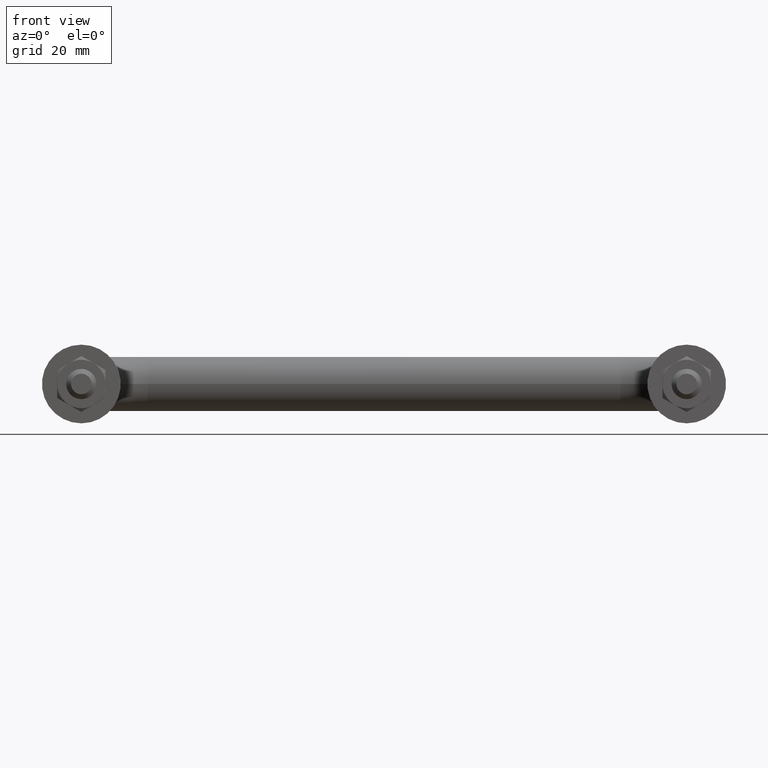
[diagram: clean part render]
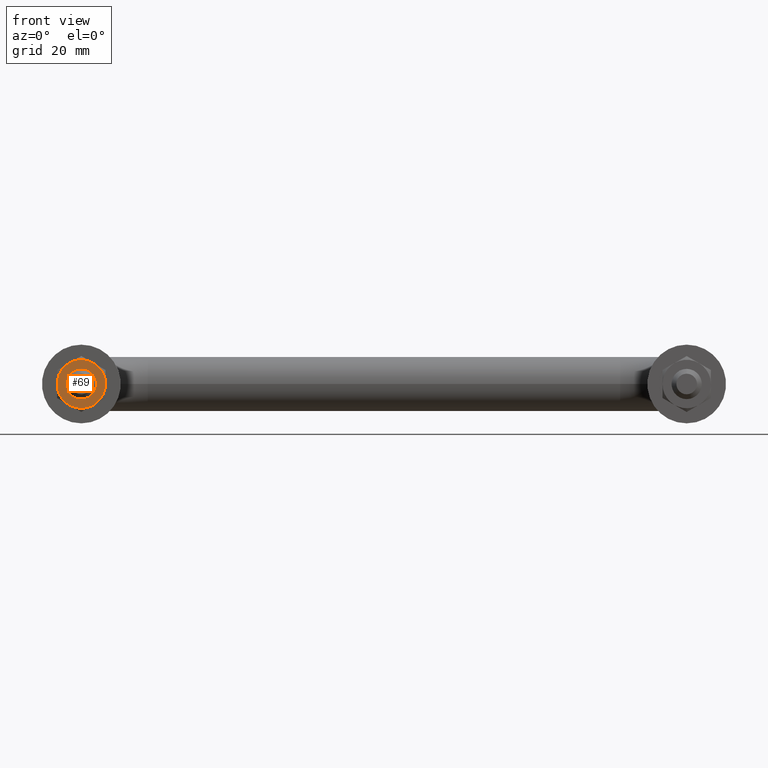
[diagram: same view with one face highlighted and labeled with its STEP entity id]
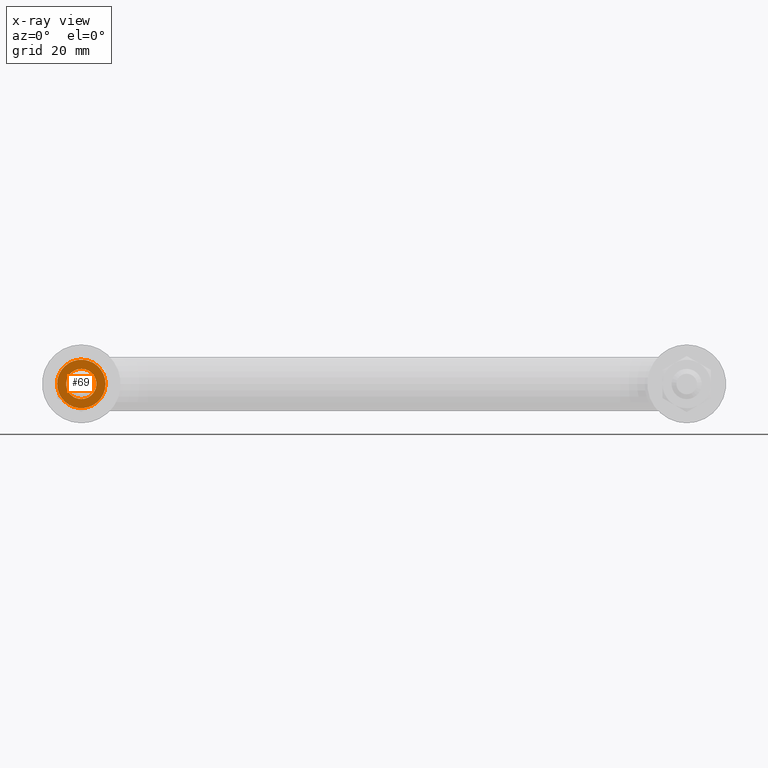
[diagram: x-ray of the same camera — body ghosted, the highlighted face saturated]
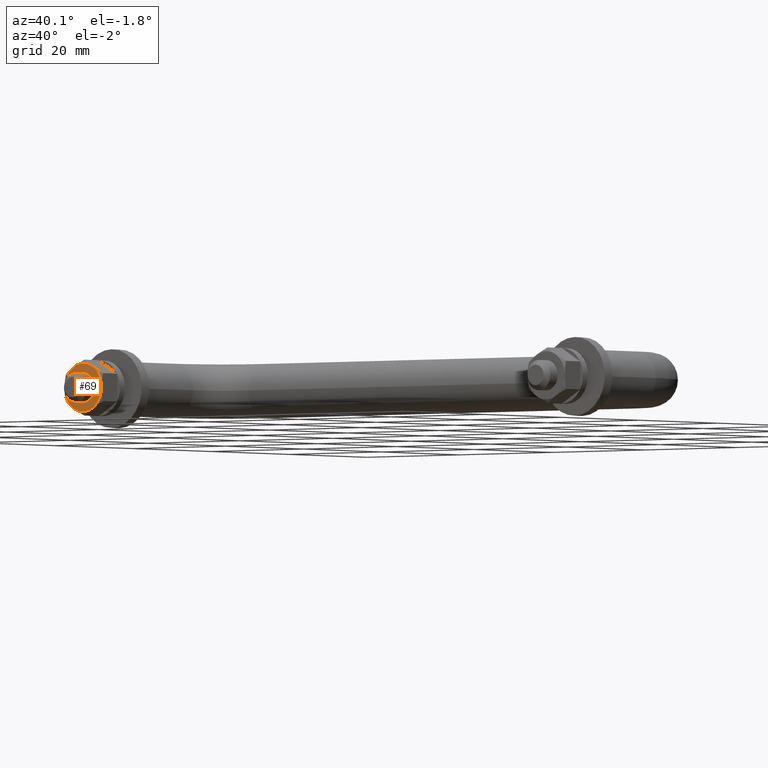
[diagram: same view with one face highlighted and labeled with its STEP entity id]
A machine part, front view. The second image highlights one B-rep face of the part: STEP entity #69.
The next image is the same camera in x-ray: the body ghosted, the highlighted face saturated — about 0% of this face is hidden behind the body in this view.
A second angle (auxiliary view) of the same face is appended — the face is thin or edge-on in the first view.
In plain terms, the highlighted planar face has unit normal (0, -1, -0).
Its self-contained STEP definition (entity closure, byte-faithful):
#36 = ORIENTED_EDGE ( 'NONE', *, *, #1285, .F. ) ;
#53 = VERTEX_POINT ( 'NONE', #509 ) ;
#68 = VERTEX_POINT ( 'NONE', #969 ) ;
#69 = ADVANCED_FACE ( 'NONE', ( #1494, #1180 ), #699, .T. ) ;
#103 = DIRECTION ( 'NONE',  ( -0.0000000000000000000, -1.000000000000000000, -0.0000000000000000000 ) ) ;
#105 = CARTESIAN_POINT ( 'NONE',  ( 0.0000000000000000000, 8.300000000000000700, -1.959370166115805200E-015 ) ) ;
#127 = DIRECTION ( 'NONE',  ( 0.0000000000000000000, 0.0000000000000000000, 1.000000000000000000 ) ) ;
#128 = DIRECTION ( 'NONE',  ( 0.0000000000000000000, 0.0000000000000000000, -1.000000000000000000 ) ) ;
#137 = CIRCLE ( 'NONE', #1532, 4.000000000000000000 ) ;
#173 = DIRECTION ( 'NONE',  ( -0.0000000000000000000, -1.000000000000000000, -0.0000000000000000000 ) ) ;
#215 = DIRECTION ( 'NONE',  ( -0.0000000000000000000, 1.000000000000000000, 0.0000000000000000000 ) ) ;
#222 = CIRCLE ( 'NONE', #784, 4.000000000000000000 ) ;
#227 = EDGE_CURVE ( 'NONE', #329, #53, #222, .T. ) ;
#230 = DIRECTION ( 'NONE',  ( 0.0000000000000000000, 0.0000000000000000000, 1.000000000000000000 ) ) ;
#264 = CARTESIAN_POINT ( 'NONE',  ( 0.0000000000000000000, 8.300000000000000700, 0.0000000000000000000 ) ) ;
#290 = ORIENTED_EDGE ( 'NONE', *, *, #322, .F. ) ;
#301 = ORIENTED_EDGE ( 'NONE', *, *, #227, .F. ) ;
#307 = DIRECTION ( 'NONE',  ( 1.000000000000000000, 0.0000000000000000000, 0.0000000000000000000 ) ) ;
#322 = EDGE_CURVE ( 'NONE', #1205, #1138, #137, .T. ) ;
#326 = CARTESIAN_POINT ( 'NONE',  ( 0.0000000000000000000, 8.300000000000000700, -1.959370166115805200E-015 ) ) ;
#329 = VERTEX_POINT ( 'NONE', #1206 ) ;
#339 = CARTESIAN_POINT ( 'NONE',  ( 4.000000000000000000, 8.300000000000000700, -1.959370166115805200E-015 ) ) ;
#350 = CIRCLE ( 'NONE', #1340, 4.000000000000000000 ) ;
#372 = DIRECTION ( 'NONE',  ( -0.0000000000000000000, -1.000000000000000000, -0.0000000000000000000 ) ) ;
#387 = CARTESIAN_POINT ( 'NONE',  ( 0.0000000000000000000, 8.300000000000000700, -1.959370166115805200E-015 ) ) ;
#469 = ORIENTED_EDGE ( 'NONE', *, *, #728, .F. ) ;
#474 = DIRECTION ( 'NONE',  ( 0.0000000000000000000, 0.0000000000000000000, 1.000000000000000000 ) ) ;
#509 = CARTESIAN_POINT ( 'NONE',  ( 1.999999300624725000, 8.300000000000000700, -3.464102018922179800 ) ) ;
#601 = CARTESIAN_POINT ( 'NONE',  ( 0.0000000000000000000, 8.300000000000000700, -1.959370166115805200E-015 ) ) ;
#605 = ORIENTED_EDGE ( 'NONE', *, *, #1746, .F. ) ;
#614 = CARTESIAN_POINT ( 'NONE',  ( 0.0000000000000000000, 8.300000000000000700, 0.0000000000000000000 ) ) ;
#649 = ORIENTED_EDGE ( 'NONE', *, *, #1580, .T. ) ;
#657 = AXIS2_PLACEMENT_3D ( 'NONE', #614, #1433, #474 ) ;
#670 = DIRECTION ( 'NONE',  ( -0.0000000000000000000, -1.000000000000000000, -0.0000000000000000000 ) ) ;
#693 = CIRCLE ( 'NONE', #657, 2.500000000000000000 ) ;
#699 = PLANE ( 'NONE',  #1572 ) ;
#718 = VERTEX_POINT ( 'NONE', #962 ) ;
#721 = CARTESIAN_POINT ( 'NONE',  ( 1.999999300624725000, 8.300000000000000700, 3.464102018922170100 ) ) ;
#725 = EDGE_CURVE ( 'NONE', #68, #718, #776, .T. ) ;
#728 = EDGE_CURVE ( 'NONE', #1533, #1205, #1113, .T. ) ;
#740 = DIRECTION ( 'NONE',  ( 2.664535259100375700E-015, 0.0000000000000000000, 1.000000000000000000 ) ) ;
#753 = VERTEX_POINT ( 'NONE', #954 ) ;
#776 = CIRCLE ( 'NONE', #1048, 2.500000000000000000 ) ;
#778 = EDGE_CURVE ( 'NONE', #753, #1124, #1672, .T. ) ;
#784 = AXIS2_PLACEMENT_3D ( 'NONE', #1273, #173, #1145 ) ;
#803 = DIRECTION ( 'NONE',  ( -0.0000000000000000000, -1.000000000000000000, -0.0000000000000000000 ) ) ;
#807 = DIRECTION ( 'NONE',  ( 0.0000000000000000000, -1.000000000000000000, 0.0000000000000000000 ) ) ;
#837 = AXIS2_PLACEMENT_3D ( 'NONE', #601, #1157, #740 ) ;
#872 = CARTESIAN_POINT ( 'NONE',  ( -1.999999300624725000, 8.300000000000000700, 3.464102018922175400 ) ) ;
#897 = ORIENTED_EDGE ( 'NONE', *, *, #778, .F. ) ;
#916 = CARTESIAN_POINT ( 'NONE',  ( 0.0000000000000000000, 8.300000000000000700, -1.959370166115805200E-015 ) ) ;
#954 = CARTESIAN_POINT ( 'NONE',  ( -4.000000000000000000, 8.300000000000000700, -1.959370166115805200E-015 ) ) ;
#962 = CARTESIAN_POINT ( 'NONE',  ( 3.061616997868383100E-016, 8.300000000000000700, 2.500000000000000000 ) ) ;
#969 = CARTESIAN_POINT ( 'NONE',  ( 0.0000000000000000000, 8.300000000000000700, -2.500000000000000000 ) ) ;
#1048 = AXIS2_PLACEMENT_3D ( 'NONE', #264, #1095, #127 ) ;
#1095 = DIRECTION ( 'NONE',  ( -0.0000000000000000000, -1.000000000000000000, -0.0000000000000000000 ) ) ;
#1113 = CIRCLE ( 'NONE', #1146, 4.000000000000000000 ) ;
#1124 = VERTEX_POINT ( 'NONE', #1766 ) ;
#1138 = VERTEX_POINT ( 'NONE', #872 ) ;
#1145 = DIRECTION ( 'NONE',  ( 0.0000000000000000000, 0.0000000000000000000, 1.000000000000000000 ) ) ;
#1146 = AXIS2_PLACEMENT_3D ( 'NONE', #1645, #670, #1541 ) ;
#1157 = DIRECTION ( 'NONE',  ( -0.0000000000000000000, -1.000000000000000000, -0.0000000000000000000 ) ) ;
#1180 = FACE_BOUND ( 'NONE', #1457, .T. ) ;
#1184 = CARTESIAN_POINT ( 'NONE',  ( 0.0000000000000000000, 8.300000000000000700, 0.0000000000000000000 ) ) ;
#1205 = VERTEX_POINT ( 'NONE', #721 ) ;
#1206 = CARTESIAN_POINT ( 'NONE',  ( 0.0000000000000000000, 8.300000000000000700, -4.000000000000001800 ) ) ;
#1226 = DIRECTION ( 'NONE',  ( 0.0000000000000000000, 0.0000000000000000000, 1.000000000000000000 ) ) ;
#1273 = CARTESIAN_POINT ( 'NONE',  ( 0.0000000000000000000, 8.300000000000000700, -1.959370166115805200E-015 ) ) ;
#1285 = EDGE_CURVE ( 'NONE', #53, #1533, #350, .T. ) ;
#1305 = ORIENTED_EDGE ( 'NONE', *, *, #1595, .F. ) ;
#1340 = AXIS2_PLACEMENT_3D ( 'NONE', #326, #807, #128 ) ;
#1433 = DIRECTION ( 'NONE',  ( -0.0000000000000000000, -1.000000000000000000, -0.0000000000000000000 ) ) ;
#1457 = EDGE_LOOP ( 'NONE', ( #1463, #649 ) ) ;
#1463 = ORIENTED_EDGE ( 'NONE', *, *, #725, .T. ) ;
#1483 = AXIS2_PLACEMENT_3D ( 'NONE', #387, #803, #1226 ) ;
#1494 = FACE_OUTER_BOUND ( 'NONE', #1666, .T. ) ;
#1532 = AXIS2_PLACEMENT_3D ( 'NONE', #916, #103, #230 ) ;
#1533 = VERTEX_POINT ( 'NONE', #339 ) ;
#1535 = CIRCLE ( 'NONE', #1483, 4.000000000000000000 ) ;
#1541 = DIRECTION ( 'NONE',  ( -1.776356839400250500E-015, 0.0000000000000000000, 1.000000000000000000 ) ) ;
#1572 = AXIS2_PLACEMENT_3D ( 'NONE', #1184, #215, #307 ) ;
#1580 = EDGE_CURVE ( 'NONE', #718, #68, #693, .T. ) ;
#1595 = EDGE_CURVE ( 'NONE', #1124, #329, #1671, .T. ) ;
#1599 = AXIS2_PLACEMENT_3D ( 'NONE', #105, #372, #1759 ) ;
#1645 = CARTESIAN_POINT ( 'NONE',  ( 0.0000000000000000000, 8.300000000000000700, -1.959370166115805200E-015 ) ) ;
#1666 = EDGE_LOOP ( 'NONE', ( #605, #290, #469, #36, #301, #1305, #897 ) ) ;
#1671 = CIRCLE ( 'NONE', #837, 4.000000000000000000 ) ;
#1672 = CIRCLE ( 'NONE', #1599, 4.000000000000000000 ) ;
#1746 = EDGE_CURVE ( 'NONE', #1138, #753, #1535, .T. ) ;
#1759 = DIRECTION ( 'NONE',  ( 0.0000000000000000000, 0.0000000000000000000, 1.000000000000000000 ) ) ;
#1766 = CARTESIAN_POINT ( 'NONE',  ( -1.999999300624725000, 8.300000000000000700, -3.464102018922175400 ) ) ;